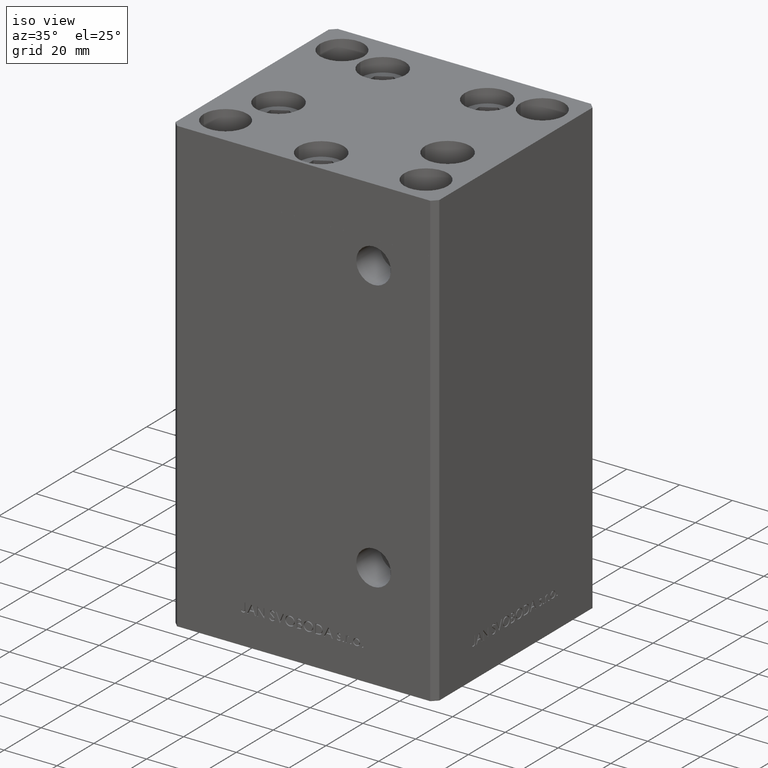
[diagram: clean part render]
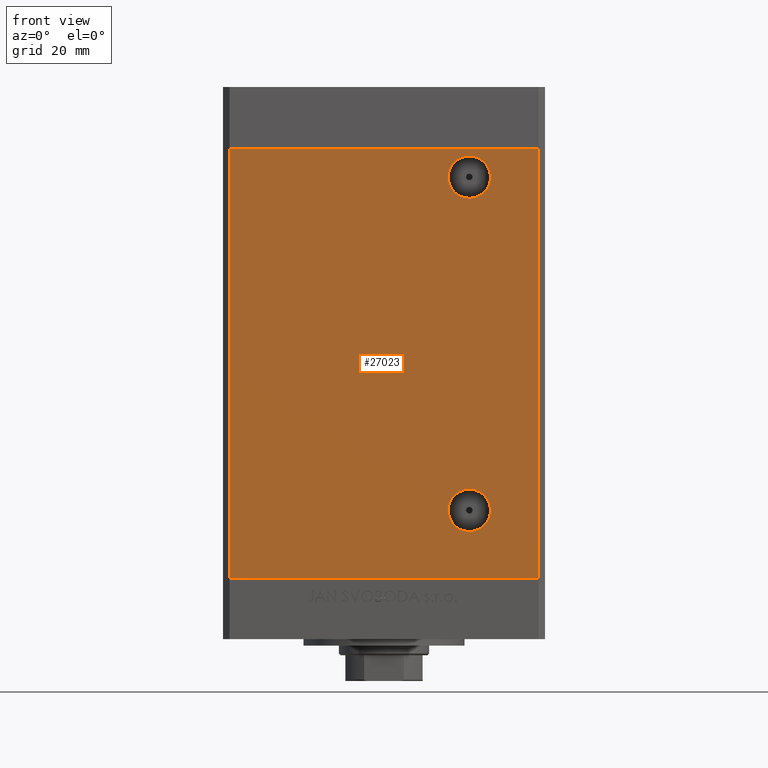
[diagram: tour spotlight — one face highlighted and labeled with its STEP entity id]
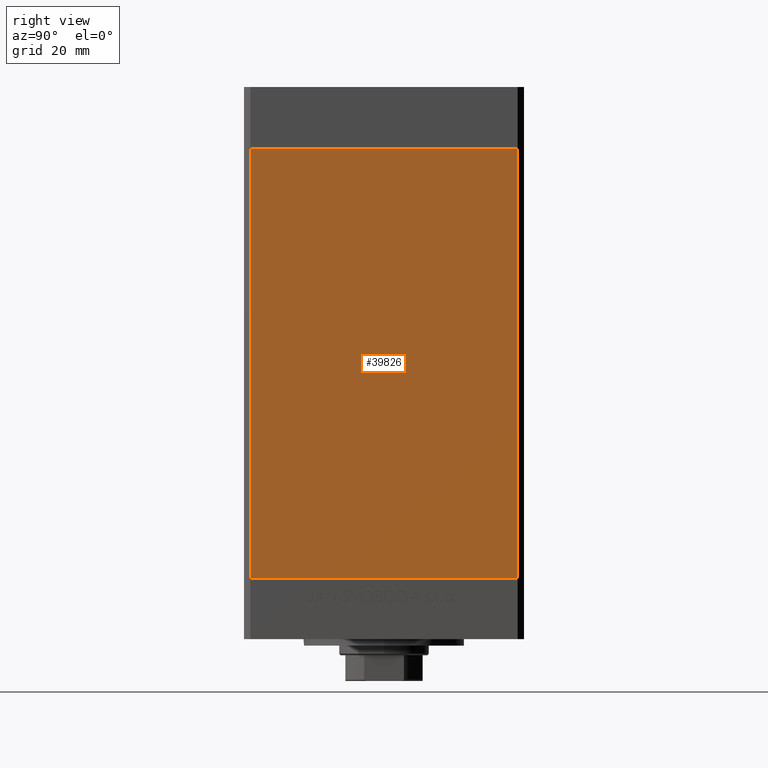
[diagram: tour spotlight — one face highlighted and labeled with its STEP entity id]
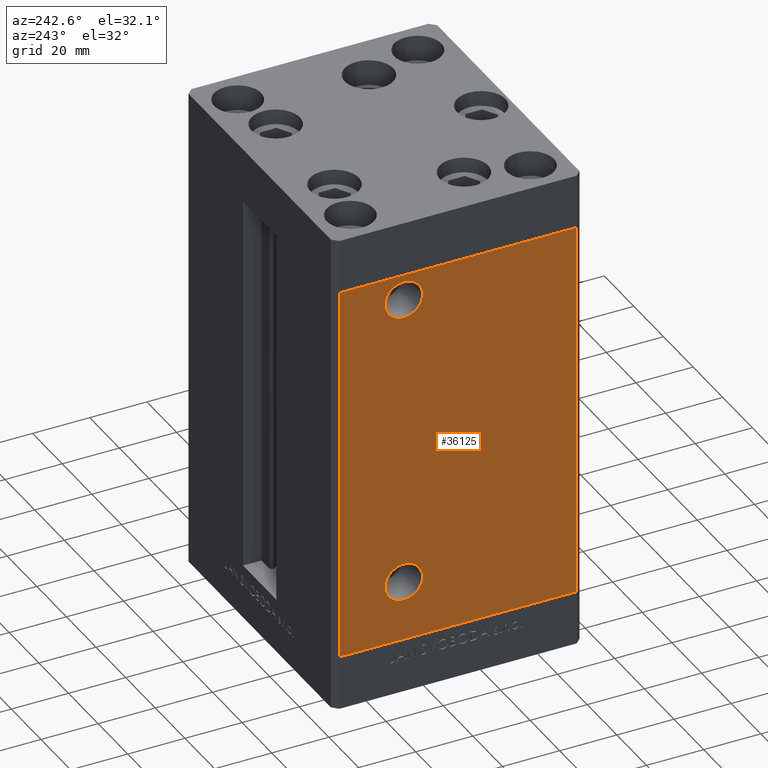
[diagram: tour spotlight — one face highlighted and labeled with its STEP entity id]
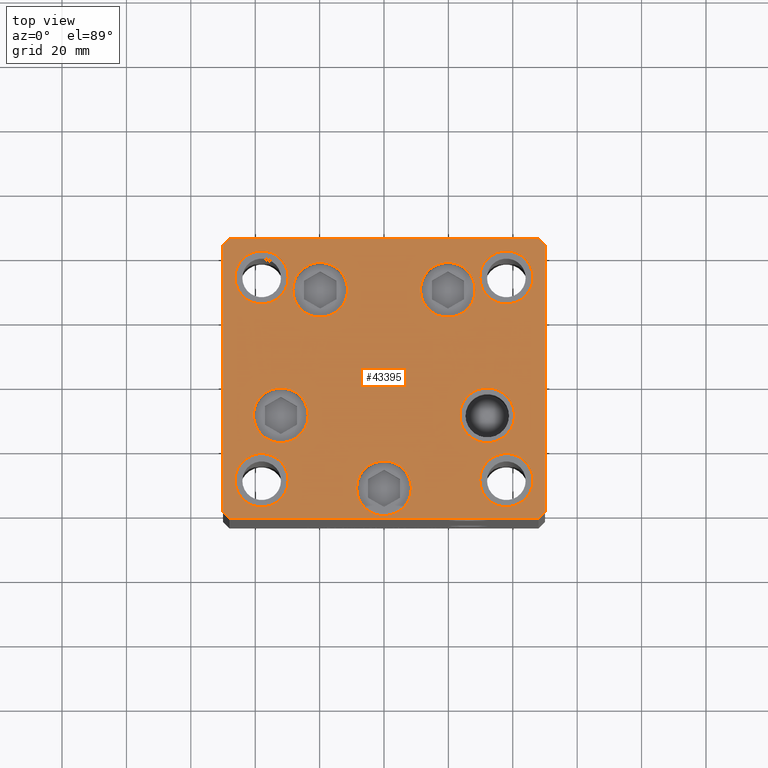
[diagram: tour spotlight — one face highlighted and labeled with its STEP entity id]
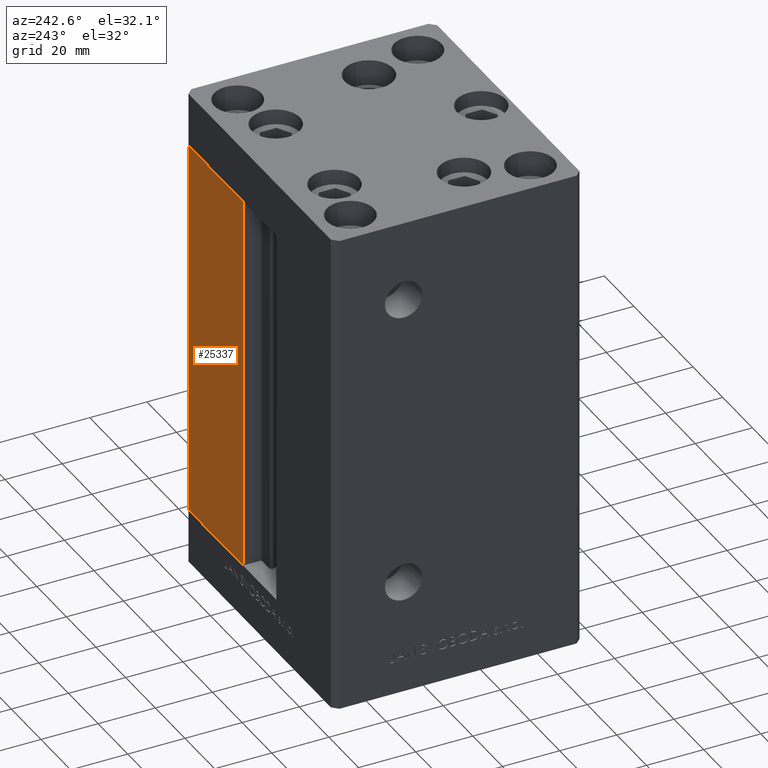
[diagram: tour spotlight — one face highlighted and labeled with its STEP entity id]
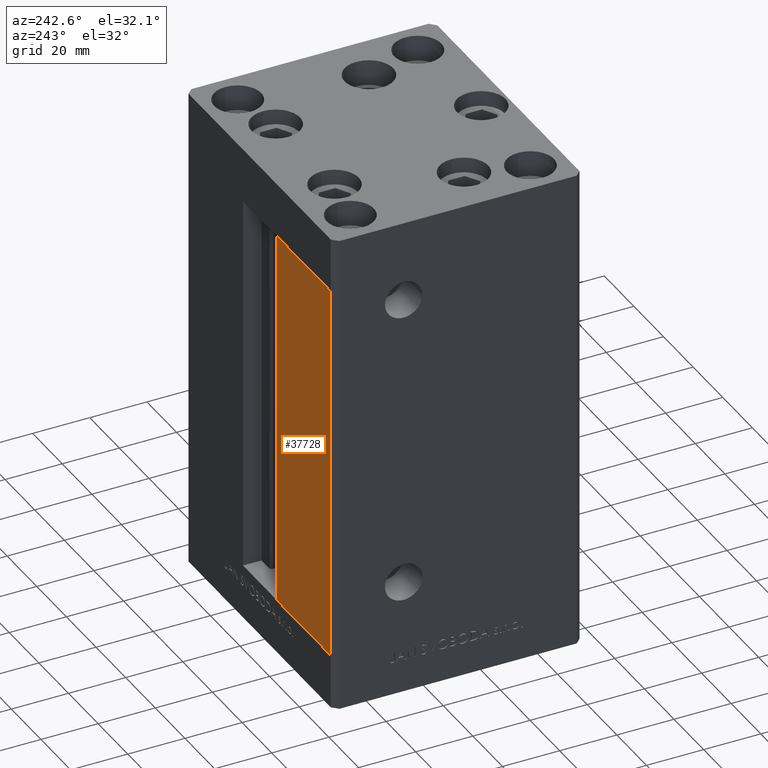
[diagram: tour spotlight — one face highlighted and labeled with its STEP entity id]
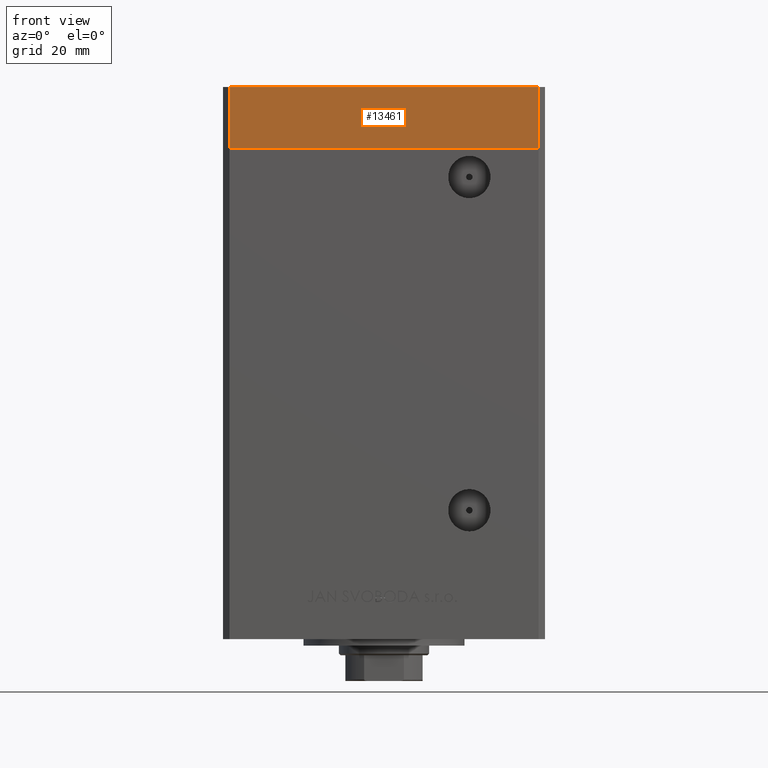
[diagram: tour spotlight — one face highlighted and labeled with its STEP entity id]
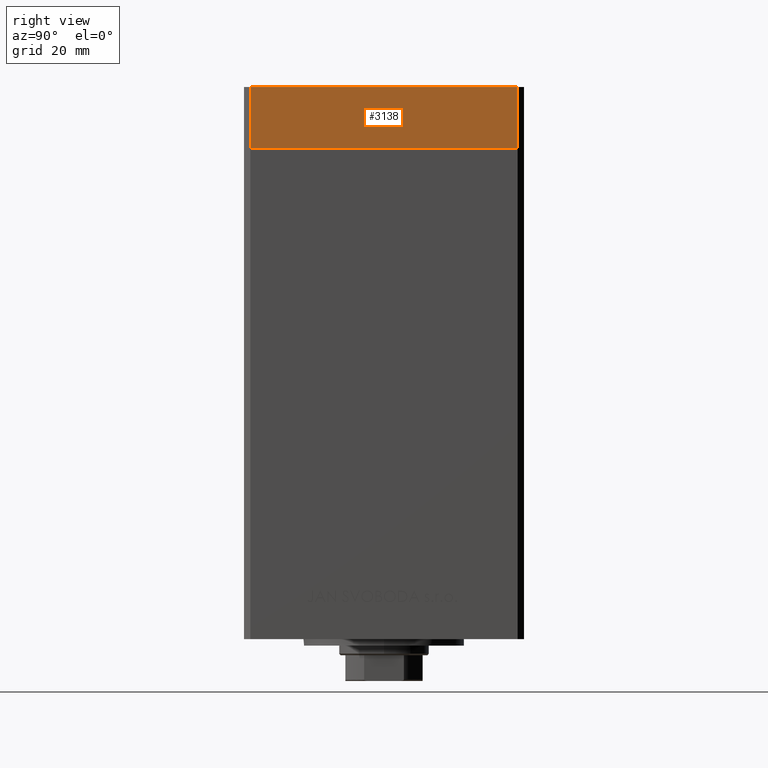
[diagram: tour spotlight — one face highlighted and labeled with its STEP entity id]
A machine part: a face-by-face anatomy tour. The part has 1182 B-rep faces; the first image is the clean iso view, then the 8 largest visible faces are spotlighted one at a time (largest first), each with its STEP entity span.

Face 1 — front view, entity #27023. In plain terms, the highlighted planar face has unit normal (0, 1, 0).
Definition (entity closure, byte-faithful):
#370 = CIRCLE ( 'NONE', #16577, 6.579999999999995630 ) ;
#1536 = VERTEX_POINT ( 'NONE', #19388 ) ;
#1841 = EDGE_LOOP ( 'NONE', ( #44507, #22585 ) ) ;
#2099 = CIRCLE ( 'NONE', #34568, 6.579999999999988525 ) ;
#2363 = DIRECTION ( 'NONE',  ( 0.000000000000000000, -0.000000000000000000, 1.000000000000000000 ) ) ;
#2970 = CIRCLE ( 'NONE', #34633, 6.579999999999988525 ) ;
#3582 = CARTESIAN_POINT ( 'NONE',  ( 26.49999999999997513, -43.50000000000000000, 124.5000000000000000 ) ) ;
#3611 = VERTEX_POINT ( 'NONE', #30665 ) ;
#4959 = DIRECTION ( 'NONE',  ( 0.000000000000000000, -1.000000000000000000, 0.000000000000000000 ) ) ;
#5430 = ORIENTED_EDGE ( 'NONE', *, *, #44925, .T. ) ;
#5653 = DIRECTION ( 'NONE',  ( 0.000000000000000000, 1.000000000000000000, 0.000000000000000000 ) ) ;
#5751 = VECTOR ( 'NONE', #47815, 1000.000000000000000 ) ;
#5831 = VERTEX_POINT ( 'NONE', #49252 ) ;
#6100 = LINE ( 'NONE', #29245, #37467 ) ;
#6598 = AXIS2_PLACEMENT_3D ( 'NONE', #44279, #5653, #2363 ) ;
#7869 = LINE ( 'NONE', #34082, #45971 ) ;
#8474 = CARTESIAN_POINT ( 'NONE',  ( -47.99999999999998579, -43.50000000000000000, 0.000000000000000000 ) ) ;
#8617 = CARTESIAN_POINT ( 'NONE',  ( -47.99999999999998579, -43.50000000000000000, 133.5000000000000000 ) ) ;
#12009 = CARTESIAN_POINT ( 'NONE',  ( 26.49999999999998934, -43.50000000000000000, 27.58000000000000185 ) ) ;
#13508 = PLANE ( 'NONE',  #6598 ) ;
#14794 = VERTEX_POINT ( 'NONE', #19071 ) ;
#16037 = CARTESIAN_POINT ( 'NONE',  ( 26.49999999999998934, -43.50000000000000000, 21.00000000000000355 ) ) ;
#16577 = AXIS2_PLACEMENT_3D ( 'NONE', #16037, #48535, #33835 ) ;
#16613 = CIRCLE ( 'NONE', #24728, 6.579999999999995630 ) ;
#16725 = DIRECTION ( 'NONE',  ( -0.000000000000000000, -0.000000000000000000, -1.000000000000000000 ) ) ;
#17823 = FACE_BOUND ( 'NONE', #48352, .T. ) ;
#19071 = CARTESIAN_POINT ( 'NONE',  ( 26.49999999999998934, -43.50000000000000000, 14.42000000000000881 ) ) ;
#19388 = CARTESIAN_POINT ( 'NONE',  ( -47.99999999999998579, -43.50000000000000000, 133.5000000000000000 ) ) ;
#19538 = DIRECTION ( 'NONE',  ( -0.000000000000000000, -0.000000000000000000, -1.000000000000000000 ) ) ;
#20349 = CARTESIAN_POINT ( 'NONE',  ( 26.49999999999997513, -43.50000000000000000, 131.0800000000000125 ) ) ;
#21424 = ORIENTED_EDGE ( 'NONE', *, *, #26081, .F. ) ;
#21475 = VERTEX_POINT ( 'NONE', #20349 ) ;
#21643 = LINE ( 'NONE', #28793, #5751 ) ;
#21855 = DIRECTION ( 'NONE',  ( 1.000000000000000000, 0.000000000000000000, 0.000000000000000000 ) ) ;
#22585 = ORIENTED_EDGE ( 'NONE', *, *, #39595, .F. ) ;
#22688 = EDGE_CURVE ( 'NONE', #14794, #25928, #370, .T. ) ;
#22933 = DIRECTION ( 'NONE',  ( -0.000000000000000000, 1.000000000000000000, -0.000000000000000000 ) ) ;
#24728 = AXIS2_PLACEMENT_3D ( 'NONE', #40015, #4959, #36223 ) ;
#25928 = VERTEX_POINT ( 'NONE', #12009 ) ;
#26081 = EDGE_CURVE ( 'NONE', #1536, #47413, #21643, .T. ) ;
#26546 = VECTOR ( 'NONE', #16725, 1000.000000000000000 ) ;
#27009 = CARTESIAN_POINT ( 'NONE',  ( 26.49999999999997513, -43.50000000000000000, 124.5000000000000000 ) ) ;
#27023 = ADVANCED_FACE ( 'NONE', ( #44030, #37161, #17823 ), #13508, .F. ) ;
#28793 = CARTESIAN_POINT ( 'NONE',  ( -47.99999999999998579, -43.50000000000000000, 133.5000000000000000 ) ) ;
#29245 = CARTESIAN_POINT ( 'NONE',  ( -47.99999999999998579, -43.50000000000000000, 0.000000000000000000 ) ) ;
#30665 = CARTESIAN_POINT ( 'NONE',  ( 26.49999999999997513, -43.50000000000000000, 117.9200000000000159 ) ) ;
#31094 = VERTEX_POINT ( 'NONE', #8474 ) ;
#31544 = EDGE_CURVE ( 'NONE', #31094, #5831, #6100, .T. ) ;
#33835 = DIRECTION ( 'NONE',  ( 0.000000000000000000, 0.000000000000000000, -1.000000000000000000 ) ) ;
#34082 = CARTESIAN_POINT ( 'NONE',  ( 47.99999999999998579, -43.50000000000000000, 133.5000000000000000 ) ) ;
#34568 = AXIS2_PLACEMENT_3D ( 'NONE', #3582, #49804, #37635 ) ;
#34633 = AXIS2_PLACEMENT_3D ( 'NONE', #27009, #22933, #35136 ) ;
#35136 = DIRECTION ( 'NONE',  ( 0.000000000000000000, 0.000000000000000000, -1.000000000000000000 ) ) ;
#35357 = ORIENTED_EDGE ( 'NONE', *, *, #46352, .T. ) ;
#36223 = DIRECTION ( 'NONE',  ( 0.000000000000000000, 0.000000000000000000, -1.000000000000000000 ) ) ;
#37161 = FACE_OUTER_BOUND ( 'NONE', #38196, .T. ) ;
#37467 = VECTOR ( 'NONE', #21855, 1000.000000000000000 ) ;
#37635 = DIRECTION ( 'NONE',  ( 0.000000000000000000, 0.000000000000000000, -1.000000000000000000 ) ) ;
#38196 = EDGE_LOOP ( 'NONE', ( #39315, #43954, #21424, #47804 ) ) ;
#39315 = ORIENTED_EDGE ( 'NONE', *, *, #31544, .T. ) ;
#39595 = EDGE_CURVE ( 'NONE', #25928, #14794, #16613, .T. ) ;
#39672 = CARTESIAN_POINT ( 'NONE',  ( 47.99999999999998579, -43.50000000000000000, 133.5000000000000000 ) ) ;
#39863 = LINE ( 'NONE', #8617, #26546 ) ;
#40015 = CARTESIAN_POINT ( 'NONE',  ( 26.49999999999998934, -43.50000000000000000, 21.00000000000000355 ) ) ;
#43954 = ORIENTED_EDGE ( 'NONE', *, *, #46727, .F. ) ;
#44030 = FACE_BOUND ( 'NONE', #1841, .T. ) ;
#44279 = CARTESIAN_POINT ( 'NONE',  ( -47.99999999999998579, -43.50000000000000000, 133.5000000000000000 ) ) ;
#44507 = ORIENTED_EDGE ( 'NONE', *, *, #22688, .F. ) ;
#44925 = EDGE_CURVE ( 'NONE', #3611, #21475, #2099, .T. ) ;
#45971 = VECTOR ( 'NONE', #19538, 1000.000000000000000 ) ;
#46352 = EDGE_CURVE ( 'NONE', #21475, #3611, #2970, .T. ) ;
#46727 = EDGE_CURVE ( 'NONE', #47413, #5831, #7869, .T. ) ;
#47413 = VERTEX_POINT ( 'NONE', #39672 ) ;
#47804 = ORIENTED_EDGE ( 'NONE', *, *, #47904, .T. ) ;
#47815 = DIRECTION ( 'NONE',  ( 1.000000000000000000, 0.000000000000000000, 0.000000000000000000 ) ) ;
#47904 = EDGE_CURVE ( 'NONE', #1536, #31094, #39863, .T. ) ;
#48352 = EDGE_LOOP ( 'NONE', ( #5430, #35357 ) ) ;
#48535 = DIRECTION ( 'NONE',  ( 0.000000000000000000, -1.000000000000000000, 0.000000000000000000 ) ) ;
#49252 = CARTESIAN_POINT ( 'NONE',  ( 47.99999999999998579, -43.50000000000000000, 0.000000000000000000 ) ) ;
#49804 = DIRECTION ( 'NONE',  ( -0.000000000000000000, 1.000000000000000000, -0.000000000000000000 ) ) ;

Face 2 — right view, entity #39826. In plain terms, the highlighted planar face has unit normal (1, -0, 0).
Definition (entity closure, byte-faithful):
#296 = ORIENTED_EDGE ( 'NONE', *, *, #7205, .F. ) ;
#358 = CARTESIAN_POINT ( 'NONE',  ( 50.00000000000001421, 41.49999999999999289, 133.5000000000000000 ) ) ;
#3210 = CARTESIAN_POINT ( 'NONE',  ( 50.00000000000001421, 41.49999999999999289, 0.000000000000000000 ) ) ;
#3612 = EDGE_CURVE ( 'NONE', #49800, #46072, #47067, .T. ) ;
#4747 = VECTOR ( 'NONE', #46138, 1000.000000000000000 ) ;
#7205 = EDGE_CURVE ( 'NONE', #49800, #10965, #10666, .T. ) ;
#8212 = DIRECTION ( 'NONE',  ( 3.344045254895050973E-16, 1.000000000000000000, 0.000000000000000000 ) ) ;
#9706 = CARTESIAN_POINT ( 'NONE',  ( 50.00000000000001421, 41.49999999999999289, 0.000000000000000000 ) ) ;
#10666 = LINE ( 'NONE', #11661, #34875 ) ;
#10965 = VERTEX_POINT ( 'NONE', #9706 ) ;
#11661 = CARTESIAN_POINT ( 'NONE',  ( 50.00000000000001421, 41.49999999999999289, 133.5000000000000000 ) ) ;
#14154 = CARTESIAN_POINT ( 'NONE',  ( 49.99999999999998579, -41.49999999999999289, 133.5000000000000000 ) ) ;
#14722 = DIRECTION ( 'NONE',  ( -0.000000000000000000, -0.000000000000000000, -1.000000000000000000 ) ) ;
#14825 = DIRECTION ( 'NONE',  ( 1.000000000000000000, -3.344045254895050973E-16, 0.000000000000000000 ) ) ;
#15758 = VECTOR ( 'NONE', #26380, 1000.000000000000000 ) ;
#21764 = EDGE_CURVE ( 'NONE', #46072, #25517, #48978, .T. ) ;
#22525 = CARTESIAN_POINT ( 'NONE',  ( 50.00000000000001421, 41.49999999999999289, 133.5000000000000000 ) ) ;
#22676 = CARTESIAN_POINT ( 'NONE',  ( 50.00000000000001421, 41.49999999999999289, 133.5000000000000000 ) ) ;
#23024 = CARTESIAN_POINT ( 'NONE',  ( 49.99999999999998579, -41.49999999999999289, 0.000000000000000000 ) ) ;
#25517 = VERTEX_POINT ( 'NONE', #23024 ) ;
#26380 = DIRECTION ( 'NONE',  ( -0.000000000000000000, -0.000000000000000000, -1.000000000000000000 ) ) ;
#27044 = PLANE ( 'NONE',  #43392 ) ;
#27941 = ORIENTED_EDGE ( 'NONE', *, *, #48359, .F. ) ;
#30653 = DIRECTION ( 'NONE',  ( -3.344045254895050973E-16, -1.000000000000000000, 0.000000000000000000 ) ) ;
#30900 = LINE ( 'NONE', #3210, #34674 ) ;
#32026 = ORIENTED_EDGE ( 'NONE', *, *, #3612, .T. ) ;
#33281 = EDGE_LOOP ( 'NONE', ( #27941, #296, #32026, #49444 ) ) ;
#34674 = VECTOR ( 'NONE', #30653, 1000.000000000000000 ) ;
#34875 = VECTOR ( 'NONE', #14722, 1000.000000000000000 ) ;
#39826 = ADVANCED_FACE ( 'NONE', ( #43012 ), #27044, .T. ) ;
#43012 = FACE_OUTER_BOUND ( 'NONE', #33281, .T. ) ;
#43392 = AXIS2_PLACEMENT_3D ( 'NONE', #358, #14825, #8212 ) ;
#46072 = VERTEX_POINT ( 'NONE', #49905 ) ;
#46138 = DIRECTION ( 'NONE',  ( -3.344045254895050973E-16, -1.000000000000000000, 0.000000000000000000 ) ) ;
#47067 = LINE ( 'NONE', #22525, #4747 ) ;
#48359 = EDGE_CURVE ( 'NONE', #10965, #25517, #30900, .T. ) ;
#48978 = LINE ( 'NONE', #14154, #15758 ) ;
#49444 = ORIENTED_EDGE ( 'NONE', *, *, #21764, .T. ) ;
#49800 = VERTEX_POINT ( 'NONE', #22676 ) ;
#49905 = CARTESIAN_POINT ( 'NONE',  ( 49.99999999999998579, -41.49999999999999289, 133.5000000000000000 ) ) ;

Face 3 — auxiliary view, entity #36125. In plain terms, the highlighted planar face has unit normal (1, 0, 0).
Definition (entity closure, byte-faithful):
#211 = DIRECTION ( 'NONE',  ( 0.000000000000000000, -1.000000000000000000, 0.000000000000000000 ) ) ;
#1296 = AXIS2_PLACEMENT_3D ( 'NONE', #3713, #26586, #42058 ) ;
#2038 = VERTEX_POINT ( 'NONE', #4437 ) ;
#3713 = CARTESIAN_POINT ( 'NONE',  ( -50.00000000000000711, 18.99999999999997158, 21.00000000000001776 ) ) ;
#4011 = DIRECTION ( 'NONE',  ( -1.000000000000000000, -2.275047181608927644E-16, 0.000000000000000000 ) ) ;
#4028 = DIRECTION ( 'NONE',  ( 3.344045254895050973E-16, -1.000000000000000000, 0.000000000000000000 ) ) ;
#4437 = CARTESIAN_POINT ( 'NONE',  ( -50.00000000000001421, 41.49999999999999289, 133.5000000000000000 ) ) ;
#6027 = CARTESIAN_POINT ( 'NONE',  ( -49.99999999999998579, -41.49999999999999289, 133.5000000000000000 ) ) ;
#6695 = EDGE_CURVE ( 'NONE', #2038, #18185, #38826, .T. ) ;
#9264 = CIRCLE ( 'NONE', #18970, 6.580000000000030269 ) ;
#9393 = DIRECTION ( 'NONE',  ( 0.000000000000000000, -1.000000000000000000, 0.000000000000000000 ) ) ;
#10543 = FACE_OUTER_BOUND ( 'NONE', #50160, .T. ) ;
#10945 = CIRCLE ( 'NONE', #23937, 6.580000000000002736 ) ;
#11292 = FACE_BOUND ( 'NONE', #24082, .T. ) ;
#11882 = CARTESIAN_POINT ( 'NONE',  ( -50.00000000000001421, 41.49999999999999289, 0.000000000000000000 ) ) ;
#14774 = AXIS2_PLACEMENT_3D ( 'NONE', #28483, #48008, #9393 ) ;
#15571 = VECTOR ( 'NONE', #29100, 1000.000000000000000 ) ;
#15695 = CARTESIAN_POINT ( 'NONE',  ( -50.00000000000001421, 41.49999999999999289, 133.5000000000000000 ) ) ;
#15830 = ORIENTED_EDGE ( 'NONE', *, *, #33254, .F. ) ;
#16187 = CARTESIAN_POINT ( 'NONE',  ( -50.00000000000000711, 12.41999999999996973, 21.00000000000001776 ) ) ;
#17170 = VERTEX_POINT ( 'NONE', #45265 ) ;
#18185 = VERTEX_POINT ( 'NONE', #6027 ) ;
#18527 = CARTESIAN_POINT ( 'NONE',  ( -50.00000000000000711, 25.57999999999997343, 21.00000000000001776 ) ) ;
#18908 = DIRECTION ( 'NONE',  ( 1.000000000000000000, 3.344045254895050973E-16, -0.000000000000000000 ) ) ;
#18970 = AXIS2_PLACEMENT_3D ( 'NONE', #29354, #41255, #48130 ) ;
#19403 = CARTESIAN_POINT ( 'NONE',  ( -50.00000000000001421, 41.49999999999999289, 133.5000000000000000 ) ) ;
#19666 = EDGE_LOOP ( 'NONE', ( #40778, #48625 ) ) ;
#20701 = LINE ( 'NONE', #11882, #15571 ) ;
#22683 = LINE ( 'NONE', #33393, #33705 ) ;
#23554 = EDGE_CURVE ( 'NONE', #30787, #39123, #10945, .T. ) ;
#23937 = AXIS2_PLACEMENT_3D ( 'NONE', #46685, #4011, #211 ) ;
#24082 = EDGE_LOOP ( 'NONE', ( #15830, #29771 ) ) ;
#24621 = VERTEX_POINT ( 'NONE', #39000 ) ;
#24836 = VERTEX_POINT ( 'NONE', #50066 ) ;
#25670 = EDGE_CURVE ( 'NONE', #29477, #24836, #9264, .T. ) ;
#26586 = DIRECTION ( 'NONE',  ( -1.000000000000000000, -2.275047181608927644E-16, 0.000000000000000000 ) ) ;
#28379 = VECTOR ( 'NONE', #4028, 1000.000000000000000 ) ;
#28483 = CARTESIAN_POINT ( 'NONE',  ( -50.00000000000000711, 19.00000000000000000, 124.5000000000000142 ) ) ;
#28694 = AXIS2_PLACEMENT_3D ( 'NONE', #19403, #18908, #34443 ) ;
#29100 = DIRECTION ( 'NONE',  ( 3.344045254895050973E-16, -1.000000000000000000, 0.000000000000000000 ) ) ;
#29354 = CARTESIAN_POINT ( 'NONE',  ( -50.00000000000000711, 19.00000000000000000, 124.5000000000000142 ) ) ;
#29477 = VERTEX_POINT ( 'NONE', #37907 ) ;
#29771 = ORIENTED_EDGE ( 'NONE', *, *, #25670, .F. ) ;
#30113 = ORIENTED_EDGE ( 'NONE', *, *, #6695, .F. ) ;
#30787 = VERTEX_POINT ( 'NONE', #18527 ) ;
#31133 = FACE_BOUND ( 'NONE', #19666, .T. ) ;
#32664 = EDGE_CURVE ( 'NONE', #17170, #24621, #20701, .T. ) ;
#33254 = EDGE_CURVE ( 'NONE', #24836, #29477, #46410, .T. ) ;
#33393 = CARTESIAN_POINT ( 'NONE',  ( -50.00000000000001421, 41.49999999999999289, 133.5000000000000000 ) ) ;
#33705 = VECTOR ( 'NONE', #45306, 1000.000000000000000 ) ;
#34443 = DIRECTION ( 'NONE',  ( -3.344045254895050973E-16, 1.000000000000000000, 0.000000000000000000 ) ) ;
#36125 = ADVANCED_FACE ( 'NONE', ( #31133, #11292, #10543 ), #38232, .F. ) ;
#37154 = EDGE_CURVE ( 'NONE', #18185, #24621, #37568, .T. ) ;
#37568 = LINE ( 'NONE', #37819, #38466 ) ;
#37819 = CARTESIAN_POINT ( 'NONE',  ( -49.99999999999998579, -41.49999999999999289, 133.5000000000000000 ) ) ;
#37907 = CARTESIAN_POINT ( 'NONE',  ( -50.00000000000000711, 25.58000000000003027, 124.5000000000000142 ) ) ;
#38232 = PLANE ( 'NONE',  #28694 ) ;
#38466 = VECTOR ( 'NONE', #49488, 1000.000000000000000 ) ;
#38826 = LINE ( 'NONE', #15695, #28379 ) ;
#39000 = CARTESIAN_POINT ( 'NONE',  ( -49.99999999999998579, -41.49999999999999289, 0.000000000000000000 ) ) ;
#39123 = VERTEX_POINT ( 'NONE', #16187 ) ;
#40224 = CIRCLE ( 'NONE', #1296, 6.580000000000002736 ) ;
#40778 = ORIENTED_EDGE ( 'NONE', *, *, #45719, .F. ) ;
#41255 = DIRECTION ( 'NONE',  ( -1.000000000000000000, -2.275047181608927644E-16, 0.000000000000000000 ) ) ;
#41906 = ORIENTED_EDGE ( 'NONE', *, *, #32664, .T. ) ;
#42058 = DIRECTION ( 'NONE',  ( 0.000000000000000000, -1.000000000000000000, 0.000000000000000000 ) ) ;
#43909 = EDGE_CURVE ( 'NONE', #2038, #17170, #22683, .T. ) ;
#45261 = ORIENTED_EDGE ( 'NONE', *, *, #37154, .F. ) ;
#45265 = CARTESIAN_POINT ( 'NONE',  ( -50.00000000000001421, 41.49999999999999289, 0.000000000000000000 ) ) ;
#45306 = DIRECTION ( 'NONE',  ( -0.000000000000000000, -0.000000000000000000, -1.000000000000000000 ) ) ;
#45719 = EDGE_CURVE ( 'NONE', #39123, #30787, #40224, .T. ) ;
#46410 = CIRCLE ( 'NONE', #14774, 6.580000000000030269 ) ;
#46685 = CARTESIAN_POINT ( 'NONE',  ( -50.00000000000000711, 18.99999999999997158, 21.00000000000001776 ) ) ;
#48008 = DIRECTION ( 'NONE',  ( -1.000000000000000000, -2.275047181608927644E-16, 0.000000000000000000 ) ) ;
#48130 = DIRECTION ( 'NONE',  ( 0.000000000000000000, -1.000000000000000000, 0.000000000000000000 ) ) ;
#48625 = ORIENTED_EDGE ( 'NONE', *, *, #23554, .F. ) ;
#49427 = ORIENTED_EDGE ( 'NONE', *, *, #43909, .T. ) ;
#49488 = DIRECTION ( 'NONE',  ( -0.000000000000000000, -0.000000000000000000, -1.000000000000000000 ) ) ;
#50066 = CARTESIAN_POINT ( 'NONE',  ( -50.00000000000000711, 12.41999999999996973, 124.5000000000000142 ) ) ;
#50160 = EDGE_LOOP ( 'NONE', ( #41906, #45261, #30113, #49427 ) ) ;

Face 4 — top view, entity #43395. In plain terms, the highlighted planar face has unit normal (0, 0, 1).
Definition (entity closure, byte-faithful):
#638 = DIRECTION ( 'NONE',  ( 0.000000000000000000, -0.000000000000000000, -1.000000000000000000 ) ) ;
#953 = ORIENTED_EDGE ( 'NONE', *, *, #31725, .T. ) ;
#990 = LINE ( 'NONE', #9350, #4203 ) ;
#1194 = EDGE_CURVE ( 'NONE', #35294, #26465, #43078, .T. ) ;
#1614 = EDGE_CURVE ( 'NONE', #19709, #49396, #39216, .T. ) ;
#2414 = AXIS2_PLACEMENT_3D ( 'NONE', #30656, #11314, #34962 ) ;
#2441 = CARTESIAN_POINT ( 'NONE',  ( 0.000000000000000000, 0.000000000000000000, 0.000000000000000000 ) ) ;
#2617 = CIRCLE ( 'NONE', #20437, 8.250000000000000000 ) ;
#2812 = CARTESIAN_POINT ( 'NONE',  ( -50.00000000000000711, 41.49999999999995026, 0.000000000000000000 ) ) ;
#3343 = CARTESIAN_POINT ( 'NONE',  ( 49.99999999999992184, 41.49999999999998579, 0.000000000000000000 ) ) ;
#3424 = DIRECTION ( 'NONE',  ( 1.000000000000000000, 0.000000000000000000, 0.000000000000000000 ) ) ;
#3541 = VERTEX_POINT ( 'NONE', #32712 ) ;
#4203 = VECTOR ( 'NONE', #12394, 1000.000000000000000 ) ;
#4377 = AXIS2_PLACEMENT_3D ( 'NONE', #49988, #50237, #38065 ) ;
#4412 = CARTESIAN_POINT ( 'NONE',  ( -48.00000000000000711, 43.49999999999996447, 0.000000000000000000 ) ) ;
#4617 = AXIS2_PLACEMENT_3D ( 'NONE', #22826, #38315, #23320 ) ;
#4738 = EDGE_LOOP ( 'NONE', ( #16783, #27562 ) ) ;
#5098 = CARTESIAN_POINT ( 'NONE',  ( 47.99999999999990763, 43.50000000000000000, 0.000000000000000000 ) ) ;
#5255 = DIRECTION ( 'NONE',  ( 1.000000000000000000, 0.000000000000000000, 0.000000000000000000 ) ) ;
#6109 = EDGE_CURVE ( 'NONE', #17355, #29272, #10473, .T. ) ;
#6455 = AXIS2_PLACEMENT_3D ( 'NONE', #37864, #26440, #45481 ) ;
#6636 = DIRECTION ( 'NONE',  ( 0.000000000000000000, -0.000000000000000000, -1.000000000000000000 ) ) ;
#7161 = EDGE_CURVE ( 'NONE', #32149, #12196, #36489, .T. ) ;
#7478 = ORIENTED_EDGE ( 'NONE', *, *, #12800, .T. ) ;
#7604 = CARTESIAN_POINT ( 'NONE',  ( 23.55550741379015633, -11.33333333333333037, 0.000000000000000000 ) ) ;
#7829 = ORIENTED_EDGE ( 'NONE', *, *, #16365, .T. ) ;
#7892 = EDGE_CURVE ( 'NONE', #49336, #23040, #10545, .T. ) ;
#8049 = EDGE_CURVE ( 'NONE', #35752, #35294, #25686, .T. ) ;
#8878 = ORIENTED_EDGE ( 'NONE', *, *, #7161, .F. ) ;
#9013 = AXIS2_PLACEMENT_3D ( 'NONE', #46959, #16445, #39337 ) ;
#9293 = FACE_BOUND ( 'NONE', #47293, .T. ) ;
#9350 = CARTESIAN_POINT ( 'NONE',  ( -50.00000000000000711, 41.49999999999995026, 0.000000000000000000 ) ) ;
#9505 = DIRECTION ( 'NONE',  ( 1.000000000000000000, 0.000000000000000000, 0.000000000000000000 ) ) ;
#9641 = EDGE_CURVE ( 'NONE', #23040, #49336, #20340, .T. ) ;
#9927 = ORIENTED_EDGE ( 'NONE', *, *, #30916, .T. ) ;
#10038 = FACE_BOUND ( 'NONE', #13058, .T. ) ;
#10125 = EDGE_LOOP ( 'NONE', ( #32291, #35925 ) ) ;
#10145 = ORIENTED_EDGE ( 'NONE', *, *, #34871, .T. ) ;
#10437 = DIRECTION ( 'NONE',  ( 1.000000000000000000, 0.000000000000000000, 0.000000000000000000 ) ) ;
#10473 = CIRCLE ( 'NONE', #2414, 8.500000000000000000 ) ;
#10545 = CIRCLE ( 'NONE', #23535, 8.250000000000000000 ) ;
#10562 = ORIENTED_EDGE ( 'NONE', *, *, #1614, .T. ) ;
#10985 = CARTESIAN_POINT ( 'NONE',  ( -48.00000000000000711, 43.49999999999996447, 0.000000000000000000 ) ) ;
#11314 = DIRECTION ( 'NONE',  ( 0.000000000000000000, -0.000000000000000000, -1.000000000000000000 ) ) ;
#11352 = VERTEX_POINT ( 'NONE', #7604 ) ;
#11367 = ORIENTED_EDGE ( 'NONE', *, *, #24972, .T. ) ;
#11542 = VERTEX_POINT ( 'NONE', #13637 ) ;
#11703 = EDGE_LOOP ( 'NONE', ( #37442, #10145 ) ) ;
#12002 = DIRECTION ( 'NONE',  ( 0.000000000000000000, -0.000000000000000000, -1.000000000000000000 ) ) ;
#12196 = VERTEX_POINT ( 'NONE', #43156 ) ;
#12305 = CIRCLE ( 'NONE', #39886, 8.500000000000000000 ) ;
#12394 = DIRECTION ( 'NONE',  ( 8.360113137237628665E-17, -1.000000000000000000, 0.000000000000000000 ) ) ;
#12580 = AXIS2_PLACEMENT_3D ( 'NONE', #34339, #6636, #10437 ) ;
#12760 = AXIS2_PLACEMENT_3D ( 'NONE', #14969, #30256, #45231 ) ;
#12800 = EDGE_CURVE ( 'NONE', #39238, #32966, #34938, .T. ) ;
#13058 = EDGE_LOOP ( 'NONE', ( #7478, #9927 ) ) ;
#13637 = CARTESIAN_POINT ( 'NONE',  ( 40.55550741379014568, -11.33333333333332860, 0.000000000000000000 ) ) ;
#13740 = VERTEX_POINT ( 'NONE', #37951 ) ;
#14119 = DIRECTION ( 'NONE',  ( 0.7071067811865474617, -0.7071067811865474617, 0.000000000000000000 ) ) ;
#14820 = CARTESIAN_POINT ( 'NONE',  ( -47.99999999999999289, -43.50000000000001421, 0.000000000000000000 ) ) ;
#14950 = VERTEX_POINT ( 'NONE', #35356 ) ;
#14969 = CARTESIAN_POINT ( 'NONE',  ( -37.99999999999999289, -31.50000000000000000, 0.000000000000000000 ) ) ;
#15361 = CARTESIAN_POINT ( 'NONE',  ( -50.00000000000000000, -41.50000000000000000, 0.000000000000000000 ) ) ;
#15640 = DIRECTION ( 'NONE',  ( -1.003213576468515193E-15, 1.000000000000000000, 0.000000000000000000 ) ) ;
#15719 = EDGE_CURVE ( 'NONE', #29272, #17355, #42344, .T. ) ;
#15886 = AXIS2_PLACEMENT_3D ( 'NONE', #16671, #20746, #36266 ) ;
#16133 = ORIENTED_EDGE ( 'NONE', *, *, #37563, .F. ) ;
#16169 = CARTESIAN_POINT ( 'NONE',  ( -19.82068048781373903, 27.62499999999999645, 0.000000000000000000 ) ) ;
#16365 = EDGE_CURVE ( 'NONE', #43761, #16982, #12305, .T. ) ;
#16445 = DIRECTION ( 'NONE',  ( 0.000000000000000000, -0.000000000000000000, -1.000000000000000000 ) ) ;
#16540 = VECTOR ( 'NONE', #46263, 1000.000000000000114 ) ;
#16605 = VERTEX_POINT ( 'NONE', #15361 ) ;
#16671 = CARTESIAN_POINT ( 'NONE',  ( 38.00000000000000000, -31.49999999999999289, 0.000000000000000000 ) ) ;
#16771 = CARTESIAN_POINT ( 'NONE',  ( -38.00000000000000000, 31.50000000000000000, 0.000000000000000000 ) ) ;
#16783 = ORIENTED_EDGE ( 'NONE', *, *, #41601, .T. ) ;
#16982 = VERTEX_POINT ( 'NONE', #34409 ) ;
#17143 = PLANE ( 'NONE',  #49090 ) ;
#17355 = VERTEX_POINT ( 'NONE', #32215 ) ;
#17506 = CIRCLE ( 'NONE', #15886, 8.250000000000000000 ) ;
#17518 = DIRECTION ( 'NONE',  ( 0.7071067811865463515, 0.7071067811865487940, 0.000000000000000000 ) ) ;
#17648 = FACE_BOUND ( 'NONE', #42401, .T. ) ;
#17787 = EDGE_CURVE ( 'NONE', #14950, #35752, #49637, .T. ) ;
#18076 = DIRECTION ( 'NONE',  ( 0.000000000000000000, -0.000000000000000000, -1.000000000000000000 ) ) ;
#18294 = AXIS2_PLACEMENT_3D ( 'NONE', #27534, #12002, #37771 ) ;
#19709 = VERTEX_POINT ( 'NONE', #10985 ) ;
#19892 = AXIS2_PLACEMENT_3D ( 'NONE', #28849, #24522, #9505 ) ;
#20340 = CIRCLE ( 'NONE', #33358, 8.250000000000000000 ) ;
#20427 = DIRECTION ( 'NONE',  ( 0.000000000000000000, 0.000000000000000000, 1.000000000000000000 ) ) ;
#20437 = AXIS2_PLACEMENT_3D ( 'NONE', #33287, #44197, #36575 ) ;
#20487 = EDGE_CURVE ( 'NONE', #42934, #19709, #36357, .T. ) ;
#20493 = DIRECTION ( 'NONE',  ( 0.000000000000000000, -0.000000000000000000, -1.000000000000000000 ) ) ;
#20727 = FACE_BOUND ( 'NONE', #20739, .T. ) ;
#20739 = EDGE_LOOP ( 'NONE', ( #47872, #8878 ) ) ;
#20746 = DIRECTION ( 'NONE',  ( 0.000000000000000000, 0.000000000000000000, 1.000000000000000000 ) ) ;
#21095 = CARTESIAN_POINT ( 'NONE',  ( 47.99999999999999289, -43.50000000000001421, 0.000000000000000000 ) ) ;
#21267 = VECTOR ( 'NONE', #3424, 1000.000000000000000 ) ;
#21330 = DIRECTION ( 'NONE',  ( -1.000000000000000000, -3.614007241618350743E-16, 0.000000000000000000 ) ) ;
#21959 = LINE ( 'NONE', #3343, #16540 ) ;
#22826 = CARTESIAN_POINT ( 'NONE',  ( -37.99999999999999289, -31.50000000000000000, 0.000000000000000000 ) ) ;
#22838 = EDGE_LOOP ( 'NONE', ( #49347, #50068, #38100, #49768, #11367, #28133, #10562, #953 ) ) ;
#23040 = VERTEX_POINT ( 'NONE', #48472 ) ;
#23181 = CARTESIAN_POINT ( 'NONE',  ( 46.25000000000000000, -31.49999999999999289, 0.000000000000000000 ) ) ;
#23320 = DIRECTION ( 'NONE',  ( 1.000000000000000000, 0.000000000000000000, 0.000000000000000000 ) ) ;
#23535 = AXIS2_PLACEMENT_3D ( 'NONE', #16771, #48024, #39413 ) ;
#24010 = DIRECTION ( 'NONE',  ( 1.000000000000000000, 0.000000000000000000, 0.000000000000000000 ) ) ;
#24097 = CIRCLE ( 'NONE', #4617, 8.250000000000000000 ) ;
#24522 = DIRECTION ( 'NONE',  ( 0.000000000000000000, -0.000000000000000000, -1.000000000000000000 ) ) ;
#24773 = EDGE_CURVE ( 'NONE', #13740, #31107, #26422, .T. ) ;
#24972 = EDGE_CURVE ( 'NONE', #26465, #42934, #21959, .T. ) ;
#24978 = DIRECTION ( 'NONE',  ( -0.7071067811865463515, -0.7071067811865487940, 0.000000000000000000 ) ) ;
#25313 = AXIS2_PLACEMENT_3D ( 'NONE', #34701, #29895, #41802 ) ;
#25328 = LINE ( 'NONE', #41818, #25533 ) ;
#25533 = VECTOR ( 'NONE', #14119, 1000.000000000000114 ) ;
#25686 = LINE ( 'NONE', #45489, #43808 ) ;
#26110 = EDGE_CURVE ( 'NONE', #11352, #11542, #26849, .T. ) ;
#26422 = CIRCLE ( 'NONE', #19892, 8.500000000000000000 ) ;
#26440 = DIRECTION ( 'NONE',  ( 0.000000000000000000, 0.000000000000000000, 1.000000000000000000 ) ) ;
#26465 = VERTEX_POINT ( 'NONE', #48513 ) ;
#26686 = CARTESIAN_POINT ( 'NONE',  ( 29.74999999999999645, -31.49999999999999289, 0.000000000000000000 ) ) ;
#26849 = CIRCLE ( 'NONE', #45519, 8.499999999999992895 ) ;
#27032 = CIRCLE ( 'NONE', #32714, 8.499999999999992895 ) ;
#27534 = CARTESIAN_POINT ( 'NONE',  ( 4.163799117101000559E-15, -34.00000000000000000, 0.000000000000000000 ) ) ;
#27562 = ORIENTED_EDGE ( 'NONE', *, *, #24773, .T. ) ;
#28133 = ORIENTED_EDGE ( 'NONE', *, *, #20487, .T. ) ;
#28217 = CIRCLE ( 'NONE', #12760, 8.250000000000000000 ) ;
#28849 = CARTESIAN_POINT ( 'NONE',  ( 4.163799117101000559E-15, -34.00000000000000000, 0.000000000000000000 ) ) ;
#29243 = CARTESIAN_POINT ( 'NONE',  ( -29.75000000000000000, 31.50000000000000000, 0.000000000000000000 ) ) ;
#29272 = VERTEX_POINT ( 'NONE', #32161 ) ;
#29380 = DIRECTION ( 'NONE',  ( 1.000000000000000000, 0.000000000000000000, 0.000000000000000000 ) ) ;
#29537 = VECTOR ( 'NONE', #21330, 1000.000000000000000 ) ;
#29635 = FACE_BOUND ( 'NONE', #36226, .T. ) ;
#29895 = DIRECTION ( 'NONE',  ( 0.000000000000000000, -0.000000000000000000, -1.000000000000000000 ) ) ;
#30256 = DIRECTION ( 'NONE',  ( 0.000000000000000000, 0.000000000000000000, 1.000000000000000000 ) ) ;
#30303 = DIRECTION ( 'NONE',  ( 1.000000000000000000, 0.000000000000000000, 0.000000000000000000 ) ) ;
#30438 = CARTESIAN_POINT ( 'NONE',  ( 32.05550741379015278, -11.33333333333333037, 0.000000000000000000 ) ) ;
#30656 = CARTESIAN_POINT ( 'NONE',  ( -32.05550741379015278, -11.33333333333333925, 0.000000000000000000 ) ) ;
#30880 = AXIS2_PLACEMENT_3D ( 'NONE', #35449, #638, #44239 ) ;
#30916 = EDGE_CURVE ( 'NONE', #32966, #39238, #44700, .T. ) ;
#31107 = VERTEX_POINT ( 'NONE', #31616 ) ;
#31542 = ORIENTED_EDGE ( 'NONE', *, *, #45528, .F. ) ;
#31616 = CARTESIAN_POINT ( 'NONE',  ( -8.499999999999996447, -34.00000000000000000, 0.000000000000000000 ) ) ;
#31630 = VERTEX_POINT ( 'NONE', #26686 ) ;
#31640 = CARTESIAN_POINT ( 'NONE',  ( -38.00000000000000000, 31.50000000000000000, 0.000000000000000000 ) ) ;
#31725 = EDGE_CURVE ( 'NONE', #49396, #16605, #990, .T. ) ;
#31919 = CARTESIAN_POINT ( 'NONE',  ( 50.00000000000000000, -41.49999999999999289, 0.000000000000000000 ) ) ;
#32076 = VERTEX_POINT ( 'NONE', #34599 ) ;
#32149 = VERTEX_POINT ( 'NONE', #46763 ) ;
#32161 = CARTESIAN_POINT ( 'NONE',  ( -23.55550741379015278, -11.33333333333333748, 0.000000000000000000 ) ) ;
#32215 = CARTESIAN_POINT ( 'NONE',  ( -40.55550741379015278, -11.33333333333333925, 0.000000000000000000 ) ) ;
#32259 = VECTOR ( 'NONE', #24978, 1000.000000000000000 ) ;
#32291 = ORIENTED_EDGE ( 'NONE', *, *, #6109, .T. ) ;
#32453 = EDGE_CURVE ( 'NONE', #12196, #32149, #2617, .T. ) ;
#32712 = CARTESIAN_POINT ( 'NONE',  ( -29.74999999999999289, -31.50000000000000000, 0.000000000000000000 ) ) ;
#32714 = AXIS2_PLACEMENT_3D ( 'NONE', #30438, #49718, #42337 ) ;
#32897 = ORIENTED_EDGE ( 'NONE', *, *, #44953, .T. ) ;
#32966 = VERTEX_POINT ( 'NONE', #43765 ) ;
#33057 = VECTOR ( 'NONE', #15640, 1000.000000000000000 ) ;
#33192 = FACE_OUTER_BOUND ( 'NONE', #22838, .T. ) ;
#33287 = CARTESIAN_POINT ( 'NONE',  ( 38.00000000000000000, 31.49999999999999289, 0.000000000000000000 ) ) ;
#33358 = AXIS2_PLACEMENT_3D ( 'NONE', #31640, #20427, #24010 ) ;
#34339 = CARTESIAN_POINT ( 'NONE',  ( -19.82068048781373903, 27.62499999999999645, 0.000000000000000000 ) ) ;
#34409 = CARTESIAN_POINT ( 'NONE',  ( -28.32068048781373903, 27.62499999999999645, 0.000000000000000000 ) ) ;
#34599 = CARTESIAN_POINT ( 'NONE',  ( -46.24999999999999289, -31.50000000000000000, 0.000000000000000000 ) ) ;
#34701 = CARTESIAN_POINT ( 'NONE',  ( -32.05550741379015278, -11.33333333333333925, 0.000000000000000000 ) ) ;
#34871 = EDGE_CURVE ( 'NONE', #11542, #11352, #27032, .T. ) ;
#34938 = CIRCLE ( 'NONE', #30880, 8.500000000000000000 ) ;
#34962 = DIRECTION ( 'NONE',  ( 1.000000000000000000, 0.000000000000000000, 0.000000000000000000 ) ) ;
#35294 = VERTEX_POINT ( 'NONE', #46848 ) ;
#35356 = CARTESIAN_POINT ( 'NONE',  ( -47.99999999999999289, -43.50000000000001421, 0.000000000000000000 ) ) ;
#35367 = CIRCLE ( 'NONE', #18294, 8.500000000000000000 ) ;
#35449 = CARTESIAN_POINT ( 'NONE',  ( 19.82068048781373193, 27.62500000000000000, 0.000000000000000000 ) ) ;
#35626 = ORIENTED_EDGE ( 'NONE', *, *, #9641, .F. ) ;
#35648 = VERTEX_POINT ( 'NONE', #23181 ) ;
#35752 = VERTEX_POINT ( 'NONE', #21095 ) ;
#35925 = ORIENTED_EDGE ( 'NONE', *, *, #15719, .T. ) ;
#36226 = EDGE_LOOP ( 'NONE', ( #32897, #7829 ) ) ;
#36266 = DIRECTION ( 'NONE',  ( 1.000000000000000000, 0.000000000000000000, 0.000000000000000000 ) ) ;
#36357 = LINE ( 'NONE', #5098, #29537 ) ;
#36488 = FACE_BOUND ( 'NONE', #10125, .T. ) ;
#36489 = CIRCLE ( 'NONE', #6455, 8.250000000000000000 ) ;
#36575 = DIRECTION ( 'NONE',  ( 1.000000000000000000, 0.000000000000000000, 0.000000000000000000 ) ) ;
#37442 = ORIENTED_EDGE ( 'NONE', *, *, #26110, .T. ) ;
#37563 = EDGE_CURVE ( 'NONE', #35648, #31630, #48170, .T. ) ;
#37771 = DIRECTION ( 'NONE',  ( 1.000000000000000000, 0.000000000000000000, 0.000000000000000000 ) ) ;
#37864 = CARTESIAN_POINT ( 'NONE',  ( 38.00000000000000000, 31.49999999999999289, 0.000000000000000000 ) ) ;
#37951 = CARTESIAN_POINT ( 'NONE',  ( 8.500000000000003553, -34.00000000000000000, 0.000000000000000000 ) ) ;
#38065 = DIRECTION ( 'NONE',  ( 1.000000000000000000, 0.000000000000000000, 0.000000000000000000 ) ) ;
#38100 = ORIENTED_EDGE ( 'NONE', *, *, #8049, .T. ) ;
#38315 = DIRECTION ( 'NONE',  ( 0.000000000000000000, 0.000000000000000000, 1.000000000000000000 ) ) ;
#38641 = EDGE_CURVE ( 'NONE', #16605, #14950, #25328, .T. ) ;
#39216 = LINE ( 'NONE', #4412, #32259 ) ;
#39238 = VERTEX_POINT ( 'NONE', #46460 ) ;
#39337 = DIRECTION ( 'NONE',  ( 1.000000000000000000, 0.000000000000000000, 0.000000000000000000 ) ) ;
#39413 = DIRECTION ( 'NONE',  ( 1.000000000000000000, 0.000000000000000000, 0.000000000000000000 ) ) ;
#39469 = ORIENTED_EDGE ( 'NONE', *, *, #48150, .F. ) ;
#39722 = CARTESIAN_POINT ( 'NONE',  ( -11.32068048781373726, 27.62499999999999645, 0.000000000000000000 ) ) ;
#39886 = AXIS2_PLACEMENT_3D ( 'NONE', #16169, #20493, #5255 ) ;
#40038 = FACE_BOUND ( 'NONE', #49011, .T. ) ;
#41601 = EDGE_CURVE ( 'NONE', #31107, #13740, #35367, .T. ) ;
#41802 = DIRECTION ( 'NONE',  ( 1.000000000000000000, 0.000000000000000000, 0.000000000000000000 ) ) ;
#41818 = CARTESIAN_POINT ( 'NONE',  ( -50.00000000000000000, -41.50000000000000000, 0.000000000000000000 ) ) ;
#41955 = CARTESIAN_POINT ( 'NONE',  ( 32.05550741379015278, -11.33333333333333037, 0.000000000000000000 ) ) ;
#42337 = DIRECTION ( 'NONE',  ( 1.000000000000000000, 0.000000000000000000, 0.000000000000000000 ) ) ;
#42344 = CIRCLE ( 'NONE', #25313, 8.500000000000000000 ) ;
#42401 = EDGE_LOOP ( 'NONE', ( #44424, #39469 ) ) ;
#42934 = VERTEX_POINT ( 'NONE', #49024 ) ;
#43078 = LINE ( 'NONE', #31919, #33057 ) ;
#43156 = CARTESIAN_POINT ( 'NONE',  ( 46.25000000000000000, 31.49999999999999289, 0.000000000000000000 ) ) ;
#43395 = ADVANCED_FACE ( 'NONE', ( #29635, #10038, #48155, #45113, #36488, #9293, #17648, #40038, #20727, #33192 ), #17143, .T. ) ;
#43761 = VERTEX_POINT ( 'NONE', #39722 ) ;
#43765 = CARTESIAN_POINT ( 'NONE',  ( 28.32068048781373193, 27.62500000000000000, 0.000000000000000000 ) ) ;
#43808 = VECTOR ( 'NONE', #17518, 1000.000000000000000 ) ;
#44197 = DIRECTION ( 'NONE',  ( 0.000000000000000000, 0.000000000000000000, 1.000000000000000000 ) ) ;
#44239 = DIRECTION ( 'NONE',  ( 1.000000000000000000, 0.000000000000000000, 0.000000000000000000 ) ) ;
#44424 = ORIENTED_EDGE ( 'NONE', *, *, #49342, .F. ) ;
#44477 = ORIENTED_EDGE ( 'NONE', *, *, #7892, .F. ) ;
#44700 = CIRCLE ( 'NONE', #9013, 8.500000000000000000 ) ;
#44953 = EDGE_CURVE ( 'NONE', #16982, #43761, #45067, .T. ) ;
#45067 = CIRCLE ( 'NONE', #12580, 8.500000000000000000 ) ;
#45113 = FACE_BOUND ( 'NONE', #4738, .T. ) ;
#45231 = DIRECTION ( 'NONE',  ( 1.000000000000000000, 0.000000000000000000, 0.000000000000000000 ) ) ;
#45481 = DIRECTION ( 'NONE',  ( 1.000000000000000000, 0.000000000000000000, 0.000000000000000000 ) ) ;
#45489 = CARTESIAN_POINT ( 'NONE',  ( 47.99999999999999289, -43.50000000000001421, 0.000000000000000000 ) ) ;
#45519 = AXIS2_PLACEMENT_3D ( 'NONE', #41955, #18076, #30303 ) ;
#45528 = EDGE_CURVE ( 'NONE', #31630, #35648, #17506, .T. ) ;
#46263 = DIRECTION ( 'NONE',  ( -0.7071067811865474617, 0.7071067811865474617, 0.000000000000000000 ) ) ;
#46460 = CARTESIAN_POINT ( 'NONE',  ( 11.32068048781373015, 27.62500000000000000, 0.000000000000000000 ) ) ;
#46763 = CARTESIAN_POINT ( 'NONE',  ( 29.74999999999999645, 31.49999999999999289, 0.000000000000000000 ) ) ;
#46848 = CARTESIAN_POINT ( 'NONE',  ( 50.00000000000000000, -41.49999999999999289, 0.000000000000000000 ) ) ;
#46959 = CARTESIAN_POINT ( 'NONE',  ( 19.82068048781373193, 27.62500000000000000, 0.000000000000000000 ) ) ;
#47293 = EDGE_LOOP ( 'NONE', ( #16133, #31542 ) ) ;
#47872 = ORIENTED_EDGE ( 'NONE', *, *, #32453, .F. ) ;
#48024 = DIRECTION ( 'NONE',  ( 0.000000000000000000, 0.000000000000000000, 1.000000000000000000 ) ) ;
#48150 = EDGE_CURVE ( 'NONE', #32076, #3541, #24097, .T. ) ;
#48155 = FACE_BOUND ( 'NONE', #11703, .T. ) ;
#48170 = CIRCLE ( 'NONE', #4377, 8.250000000000000000 ) ;
#48472 = CARTESIAN_POINT ( 'NONE',  ( -46.25000000000000000, 31.50000000000000000, 0.000000000000000000 ) ) ;
#48513 = CARTESIAN_POINT ( 'NONE',  ( 49.99999999999992184, 41.49999999999998579, 0.000000000000000000 ) ) ;
#48660 = DIRECTION ( 'NONE',  ( -0.000000000000000000, 0.000000000000000000, 1.000000000000000000 ) ) ;
#49011 = EDGE_LOOP ( 'NONE', ( #44477, #35626 ) ) ;
#49024 = CARTESIAN_POINT ( 'NONE',  ( 47.99999999999990763, 43.50000000000000000, 0.000000000000000000 ) ) ;
#49090 = AXIS2_PLACEMENT_3D ( 'NONE', #2441, #48660, #29380 ) ;
#49336 = VERTEX_POINT ( 'NONE', #29243 ) ;
#49342 = EDGE_CURVE ( 'NONE', #3541, #32076, #28217, .T. ) ;
#49347 = ORIENTED_EDGE ( 'NONE', *, *, #38641, .T. ) ;
#49396 = VERTEX_POINT ( 'NONE', #2812 ) ;
#49637 = LINE ( 'NONE', #14820, #21267 ) ;
#49718 = DIRECTION ( 'NONE',  ( 0.000000000000000000, -0.000000000000000000, -1.000000000000000000 ) ) ;
#49768 = ORIENTED_EDGE ( 'NONE', *, *, #1194, .T. ) ;
#49988 = CARTESIAN_POINT ( 'NONE',  ( 38.00000000000000000, -31.49999999999999289, 0.000000000000000000 ) ) ;
#50068 = ORIENTED_EDGE ( 'NONE', *, *, #17787, .T. ) ;
#50237 = DIRECTION ( 'NONE',  ( 0.000000000000000000, 0.000000000000000000, 1.000000000000000000 ) ) ;

Face 5 — auxiliary view, entity #25337. In plain terms, the highlighted planar face has unit normal (0, -1, 0).
Definition (entity closure, byte-faithful):
#1645 = ORIENTED_EDGE ( 'NONE', *, *, #43334, .T. ) ;
#1782 = CARTESIAN_POINT ( 'NONE',  ( 48.00000000000000711, 43.50000000000000000, 0.000000000000000000 ) ) ;
#2898 = LINE ( 'NONE', #18372, #6921 ) ;
#3308 = LINE ( 'NONE', #45981, #49271 ) ;
#3807 = DIRECTION ( 'NONE',  ( -1.000000000000000000, 0.000000000000000000, 0.000000000000000000 ) ) ;
#4127 = ORIENTED_EDGE ( 'NONE', *, *, #49395, .T. ) ;
#4332 = VERTEX_POINT ( 'NONE', #1782 ) ;
#5730 = DIRECTION ( 'NONE',  ( -0.000000000000000000, -0.000000000000000000, -1.000000000000000000 ) ) ;
#6921 = VECTOR ( 'NONE', #21686, 1000.000000000000000 ) ;
#10426 = VERTEX_POINT ( 'NONE', #37094 ) ;
#11055 = DIRECTION ( 'NONE',  ( 1.000000000000000000, 0.000000000000000000, 0.000000000000000000 ) ) ;
#12676 = EDGE_CURVE ( 'NONE', #40174, #10426, #18916, .T. ) ;
#13622 = PLANE ( 'NONE',  #32108 ) ;
#14182 = VECTOR ( 'NONE', #5730, 1000.000000000000000 ) ;
#18372 = CARTESIAN_POINT ( 'NONE',  ( 11.24999999999999822, 43.50000000000000000, 0.000000000000000000 ) ) ;
#18916 = LINE ( 'NONE', #30142, #42237 ) ;
#20979 = LINE ( 'NONE', #44351, #14182 ) ;
#21686 = DIRECTION ( 'NONE',  ( -0.000000000000000000, -0.000000000000000000, 1.000000000000000000 ) ) ;
#23598 = EDGE_CURVE ( 'NONE', #31492, #40174, #2898, .T. ) ;
#25084 = DIRECTION ( 'NONE',  ( 0.000000000000000000, -0.000000000000000000, -1.000000000000000000 ) ) ;
#25337 = ADVANCED_FACE ( 'NONE', ( #41060 ), #13622, .F. ) ;
#25599 = DIRECTION ( 'NONE',  ( 0.000000000000000000, -1.000000000000000000, 0.000000000000000000 ) ) ;
#30142 = CARTESIAN_POINT ( 'NONE',  ( -11.24999999999999822, 43.50000000000000000, 133.5000000000000000 ) ) ;
#31492 = VERTEX_POINT ( 'NONE', #37615 ) ;
#32108 = AXIS2_PLACEMENT_3D ( 'NONE', #48956, #25599, #25084 ) ;
#36637 = ORIENTED_EDGE ( 'NONE', *, *, #23598, .T. ) ;
#37094 = CARTESIAN_POINT ( 'NONE',  ( 48.00000000000000711, 43.50000000000000000, 133.5000000000000000 ) ) ;
#37615 = CARTESIAN_POINT ( 'NONE',  ( 11.24999999999999822, 43.50000000000000000, 0.000000000000000000 ) ) ;
#40174 = VERTEX_POINT ( 'NONE', #41553 ) ;
#41060 = FACE_OUTER_BOUND ( 'NONE', #45442, .T. ) ;
#41553 = CARTESIAN_POINT ( 'NONE',  ( 11.24999999999999112, 43.50000000000000000, 133.5000000000000000 ) ) ;
#42237 = VECTOR ( 'NONE', #11055, 1000.000000000000000 ) ;
#43334 = EDGE_CURVE ( 'NONE', #10426, #4332, #20979, .T. ) ;
#44351 = CARTESIAN_POINT ( 'NONE',  ( 48.00000000000000711, 43.50000000000000000, 133.5000000000000000 ) ) ;
#45442 = EDGE_LOOP ( 'NONE', ( #4127, #36637, #49297, #1645 ) ) ;
#45981 = CARTESIAN_POINT ( 'NONE',  ( -11.24999999999999822, 43.50000000000000000, 0.000000000000000000 ) ) ;
#48956 = CARTESIAN_POINT ( 'NONE',  ( -11.24999999999999822, 43.50000000000000000, 133.5000000000000000 ) ) ;
#49271 = VECTOR ( 'NONE', #3807, 1000.000000000000000 ) ;
#49297 = ORIENTED_EDGE ( 'NONE', *, *, #12676, .T. ) ;
#49395 = EDGE_CURVE ( 'NONE', #4332, #31492, #3308, .T. ) ;

Face 6 — auxiliary view, entity #37728. In plain terms, the highlighted planar face has unit normal (0, -1, 0).
Definition (entity closure, byte-faithful):
#350 = EDGE_CURVE ( 'NONE', #10296, #48293, #42642, .T. ) ;
#3757 = CARTESIAN_POINT ( 'NONE',  ( -48.00000000000000711, 43.50000000000000000, 133.5000000000000000 ) ) ;
#4955 = EDGE_CURVE ( 'NONE', #8385, #48293, #34516, .T. ) ;
#5012 = ORIENTED_EDGE ( 'NONE', *, *, #350, .T. ) ;
#5968 = VECTOR ( 'NONE', #44283, 1000.000000000000000 ) ;
#6987 = VECTOR ( 'NONE', #9558, 1000.000000000000000 ) ;
#8385 = VERTEX_POINT ( 'NONE', #42601 ) ;
#8562 = CARTESIAN_POINT ( 'NONE',  ( -11.24999999999999822, 43.50000000000000000, 0.000000000000000000 ) ) ;
#9266 = AXIS2_PLACEMENT_3D ( 'NONE', #9994, #31701, #23817 ) ;
#9558 = DIRECTION ( 'NONE',  ( -0.000000000000000000, -0.000000000000000000, 1.000000000000000000 ) ) ;
#9994 = CARTESIAN_POINT ( 'NONE',  ( -11.24999999999999822, 43.50000000000000000, 133.5000000000000000 ) ) ;
#10296 = VERTEX_POINT ( 'NONE', #26731 ) ;
#16506 = EDGE_LOOP ( 'NONE', ( #28155, #36720, #5012, #49064 ) ) ;
#18732 = DIRECTION ( 'NONE',  ( -0.000000000000000000, -0.000000000000000000, -1.000000000000000000 ) ) ;
#20762 = DIRECTION ( 'NONE',  ( -1.000000000000000000, 0.000000000000000000, 0.000000000000000000 ) ) ;
#20995 = CARTESIAN_POINT ( 'NONE',  ( -48.00000000000000711, 43.50000000000000000, 0.000000000000000000 ) ) ;
#21015 = CARTESIAN_POINT ( 'NONE',  ( -11.24999999999999822, 43.50000000000000000, 0.000000000000000000 ) ) ;
#21303 = EDGE_CURVE ( 'NONE', #8385, #24445, #27812, .T. ) ;
#23817 = DIRECTION ( 'NONE',  ( 0.000000000000000000, -0.000000000000000000, -1.000000000000000000 ) ) ;
#24445 = VERTEX_POINT ( 'NONE', #28657 ) ;
#25073 = LINE ( 'NONE', #8562, #6987 ) ;
#26731 = CARTESIAN_POINT ( 'NONE',  ( -11.24999999999999822, 43.50000000000000000, 0.000000000000000000 ) ) ;
#27812 = LINE ( 'NONE', #39468, #5968 ) ;
#28144 = PLANE ( 'NONE',  #9266 ) ;
#28155 = ORIENTED_EDGE ( 'NONE', *, *, #21303, .T. ) ;
#28657 = CARTESIAN_POINT ( 'NONE',  ( -11.24999999999999822, 43.50000000000000000, 133.5000000000000000 ) ) ;
#28991 = VECTOR ( 'NONE', #20762, 1000.000000000000000 ) ;
#29142 = VECTOR ( 'NONE', #18732, 1000.000000000000000 ) ;
#31701 = DIRECTION ( 'NONE',  ( 0.000000000000000000, -1.000000000000000000, 0.000000000000000000 ) ) ;
#31951 = FACE_OUTER_BOUND ( 'NONE', #16506, .T. ) ;
#34516 = LINE ( 'NONE', #3757, #29142 ) ;
#36720 = ORIENTED_EDGE ( 'NONE', *, *, #45467, .F. ) ;
#37728 = ADVANCED_FACE ( 'NONE', ( #31951 ), #28144, .F. ) ;
#39468 = CARTESIAN_POINT ( 'NONE',  ( -11.24999999999999822, 43.50000000000000000, 133.5000000000000000 ) ) ;
#42601 = CARTESIAN_POINT ( 'NONE',  ( -48.00000000000000711, 43.50000000000000000, 133.5000000000000000 ) ) ;
#42642 = LINE ( 'NONE', #21015, #28991 ) ;
#44283 = DIRECTION ( 'NONE',  ( 1.000000000000000000, 0.000000000000000000, 0.000000000000000000 ) ) ;
#45467 = EDGE_CURVE ( 'NONE', #10296, #24445, #25073, .T. ) ;
#48293 = VERTEX_POINT ( 'NONE', #20995 ) ;
#49064 = ORIENTED_EDGE ( 'NONE', *, *, #4955, .F. ) ;

Face 7 — front view, entity #13461. In plain terms, the highlighted planar face has unit normal (0, -1, 0).
Definition (entity closure, byte-faithful):
#696 = VECTOR ( 'NONE', #25082, 1000.000000000000000 ) ;
#2403 = CARTESIAN_POINT ( 'NONE',  ( -47.99999999999999289, -43.50000000000001421, -19.00000000000000000 ) ) ;
#3424 = DIRECTION ( 'NONE',  ( 1.000000000000000000, 0.000000000000000000, 0.000000000000000000 ) ) ;
#3483 = EDGE_CURVE ( 'NONE', #6889, #35752, #33484, .T. ) ;
#3699 = EDGE_CURVE ( 'NONE', #22506, #14950, #38514, .T. ) ;
#3707 = PLANE ( 'NONE',  #13022 ) ;
#3954 = FACE_OUTER_BOUND ( 'NONE', #16926, .T. ) ;
#5168 = ORIENTED_EDGE ( 'NONE', *, *, #16752, .T. ) ;
#6889 = VERTEX_POINT ( 'NONE', #37023 ) ;
#8791 = ORIENTED_EDGE ( 'NONE', *, *, #3483, .T. ) ;
#13022 = AXIS2_PLACEMENT_3D ( 'NONE', #34708, #42053, #50177 ) ;
#13461 = ADVANCED_FACE ( 'NONE', ( #3954 ), #3707, .T. ) ;
#14820 = CARTESIAN_POINT ( 'NONE',  ( -47.99999999999999289, -43.50000000000001421, 0.000000000000000000 ) ) ;
#14950 = VERTEX_POINT ( 'NONE', #35356 ) ;
#16752 = EDGE_CURVE ( 'NONE', #22506, #6889, #40991, .T. ) ;
#16926 = EDGE_LOOP ( 'NONE', ( #35974, #37266, #5168, #8791 ) ) ;
#17787 = EDGE_CURVE ( 'NONE', #14950, #35752, #49637, .T. ) ;
#19348 = CARTESIAN_POINT ( 'NONE',  ( -47.99999999999999289, -43.50000000000001421, -19.00000000000000000 ) ) ;
#21095 = CARTESIAN_POINT ( 'NONE',  ( 47.99999999999999289, -43.50000000000001421, 0.000000000000000000 ) ) ;
#21267 = VECTOR ( 'NONE', #3424, 1000.000000000000000 ) ;
#22506 = VERTEX_POINT ( 'NONE', #19348 ) ;
#25082 = DIRECTION ( 'NONE',  ( 0.000000000000000000, 0.000000000000000000, 1.000000000000000000 ) ) ;
#25521 = DIRECTION ( 'NONE',  ( 1.000000000000000000, 0.000000000000000000, 0.000000000000000000 ) ) ;
#25846 = VECTOR ( 'NONE', #42068, 1000.000000000000000 ) ;
#31819 = VECTOR ( 'NONE', #25521, 1000.000000000000000 ) ;
#33484 = LINE ( 'NONE', #44624, #696 ) ;
#34708 = CARTESIAN_POINT ( 'NONE',  ( -47.99999999999999289, -43.50000000000001421, -19.00000000000000000 ) ) ;
#35356 = CARTESIAN_POINT ( 'NONE',  ( -47.99999999999999289, -43.50000000000001421, 0.000000000000000000 ) ) ;
#35752 = VERTEX_POINT ( 'NONE', #21095 ) ;
#35974 = ORIENTED_EDGE ( 'NONE', *, *, #17787, .F. ) ;
#37023 = CARTESIAN_POINT ( 'NONE',  ( 47.99999999999999289, -43.50000000000001421, -19.00000000000000000 ) ) ;
#37266 = ORIENTED_EDGE ( 'NONE', *, *, #3699, .F. ) ;
#38514 = LINE ( 'NONE', #49446, #25846 ) ;
#40991 = LINE ( 'NONE', #2403, #31819 ) ;
#42053 = DIRECTION ( 'NONE',  ( 0.000000000000000000, -1.000000000000000000, 0.000000000000000000 ) ) ;
#42068 = DIRECTION ( 'NONE',  ( 0.000000000000000000, 0.000000000000000000, 1.000000000000000000 ) ) ;
#44624 = CARTESIAN_POINT ( 'NONE',  ( 47.99999999999999289, -43.50000000000001421, -19.00000000000000000 ) ) ;
#49446 = CARTESIAN_POINT ( 'NONE',  ( -47.99999999999999289, -43.50000000000001421, -19.00000000000000000 ) ) ;
#49637 = LINE ( 'NONE', #14820, #21267 ) ;
#50177 = DIRECTION ( 'NONE',  ( 0.000000000000000000, -0.000000000000000000, -1.000000000000000000 ) ) ;

Face 8 — right view, entity #3138. In plain terms, the highlighted planar face has unit normal (1, 0, 0).
Definition (entity closure, byte-faithful):
#1194 = EDGE_CURVE ( 'NONE', #35294, #26465, #43078, .T. ) ;
#3138 = ADVANCED_FACE ( 'NONE', ( #24144 ), #27470, .T. ) ;
#8324 = VERTEX_POINT ( 'NONE', #48467 ) ;
#13863 = VECTOR ( 'NONE', #49080, 1000.000000000000000 ) ;
#14704 = EDGE_CURVE ( 'NONE', #8324, #24027, #17303, .T. ) ;
#15640 = DIRECTION ( 'NONE',  ( -1.003213576468515193E-15, 1.000000000000000000, 0.000000000000000000 ) ) ;
#17303 = LINE ( 'NONE', #45020, #13863 ) ;
#17446 = DIRECTION ( 'NONE',  ( 0.000000000000000000, 0.000000000000000000, 1.000000000000000000 ) ) ;
#18211 = EDGE_CURVE ( 'NONE', #8324, #35294, #21269, .T. ) ;
#20057 = CARTESIAN_POINT ( 'NONE',  ( 49.99999999999992184, 41.49999999999998579, -19.00000000000000000 ) ) ;
#20064 = CARTESIAN_POINT ( 'NONE',  ( 50.00000000000000000, -41.49999999999999289, -19.00000000000000000 ) ) ;
#21269 = LINE ( 'NONE', #36786, #25387 ) ;
#22965 = CARTESIAN_POINT ( 'NONE',  ( 49.99999999999992184, 41.49999999999998579, -19.00000000000000000 ) ) ;
#23244 = ORIENTED_EDGE ( 'NONE', *, *, #14704, .T. ) ;
#24027 = VERTEX_POINT ( 'NONE', #20057 ) ;
#24144 = FACE_OUTER_BOUND ( 'NONE', #25875, .T. ) ;
#25387 = VECTOR ( 'NONE', #17446, 1000.000000000000000 ) ;
#25875 = EDGE_LOOP ( 'NONE', ( #40603, #28891, #23244, #44106 ) ) ;
#26465 = VERTEX_POINT ( 'NONE', #48513 ) ;
#26784 = LINE ( 'NONE', #22965, #45515 ) ;
#27470 = PLANE ( 'NONE',  #42026 ) ;
#28891 = ORIENTED_EDGE ( 'NONE', *, *, #18211, .F. ) ;
#29369 = EDGE_CURVE ( 'NONE', #24027, #26465, #26784, .T. ) ;
#31919 = CARTESIAN_POINT ( 'NONE',  ( 50.00000000000000000, -41.49999999999999289, 0.000000000000000000 ) ) ;
#33057 = VECTOR ( 'NONE', #15640, 1000.000000000000000 ) ;
#35294 = VERTEX_POINT ( 'NONE', #46848 ) ;
#36786 = CARTESIAN_POINT ( 'NONE',  ( 50.00000000000000000, -41.49999999999999289, -19.00000000000000000 ) ) ;
#38457 = DIRECTION ( 'NONE',  ( 0.000000000000000000, 0.000000000000000000, 1.000000000000000000 ) ) ;
#39624 = DIRECTION ( 'NONE',  ( -1.003213576468515193E-15, 1.000000000000000000, 0.000000000000000000 ) ) ;
#40603 = ORIENTED_EDGE ( 'NONE', *, *, #1194, .F. ) ;
#42026 = AXIS2_PLACEMENT_3D ( 'NONE', #20064, #43190, #39624 ) ;
#43078 = LINE ( 'NONE', #31919, #33057 ) ;
#43190 = DIRECTION ( 'NONE',  ( 1.000000000000000000, 1.003213576468515193E-15, -0.000000000000000000 ) ) ;
#44106 = ORIENTED_EDGE ( 'NONE', *, *, #29369, .T. ) ;
#45020 = CARTESIAN_POINT ( 'NONE',  ( 50.00000000000000000, -41.49999999999999289, -19.00000000000000000 ) ) ;
#45515 = VECTOR ( 'NONE', #38457, 1000.000000000000000 ) ;
#46848 = CARTESIAN_POINT ( 'NONE',  ( 50.00000000000000000, -41.49999999999999289, 0.000000000000000000 ) ) ;
#48467 = CARTESIAN_POINT ( 'NONE',  ( 50.00000000000000000, -41.49999999999999289, -19.00000000000000000 ) ) ;
#48513 = CARTESIAN_POINT ( 'NONE',  ( 49.99999999999992184, 41.49999999999998579, 0.000000000000000000 ) ) ;
#49080 = DIRECTION ( 'NONE',  ( -1.003213576468515193E-15, 1.000000000000000000, 0.000000000000000000 ) ) ;